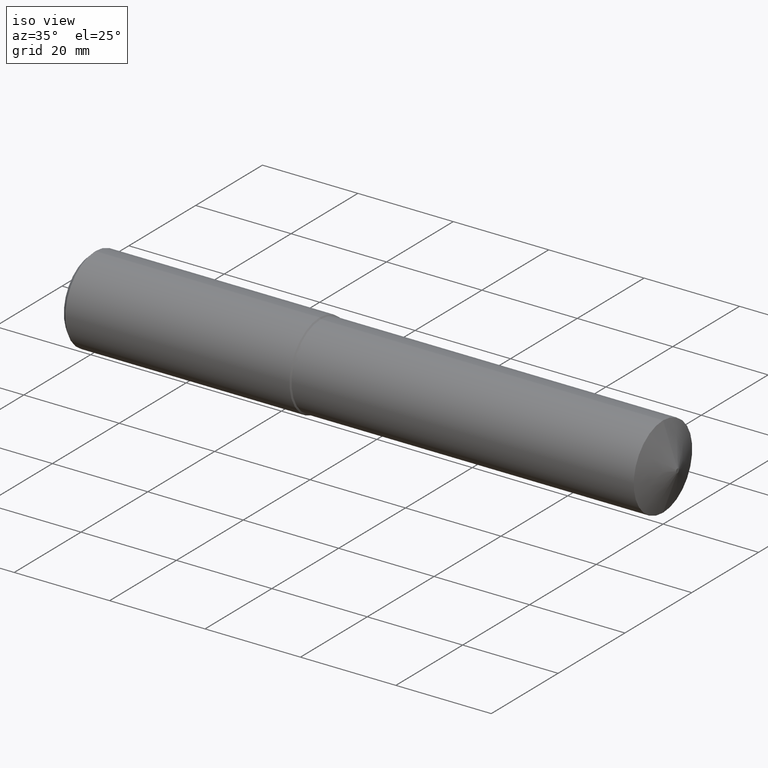
[diagram: clean part render]
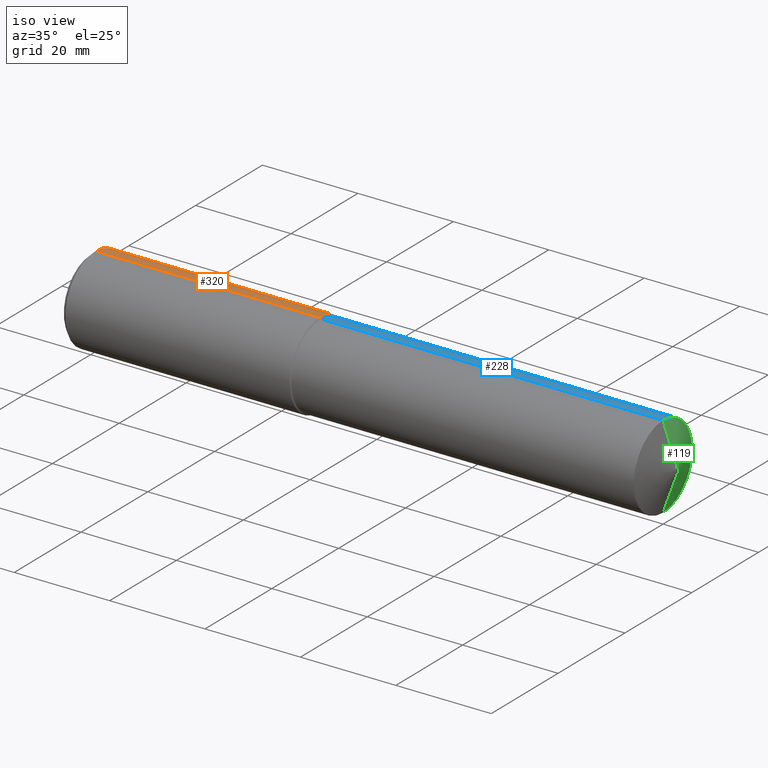
[diagram: same view with three faces highlighted in distinct colors, each labeled with its STEP entity id]
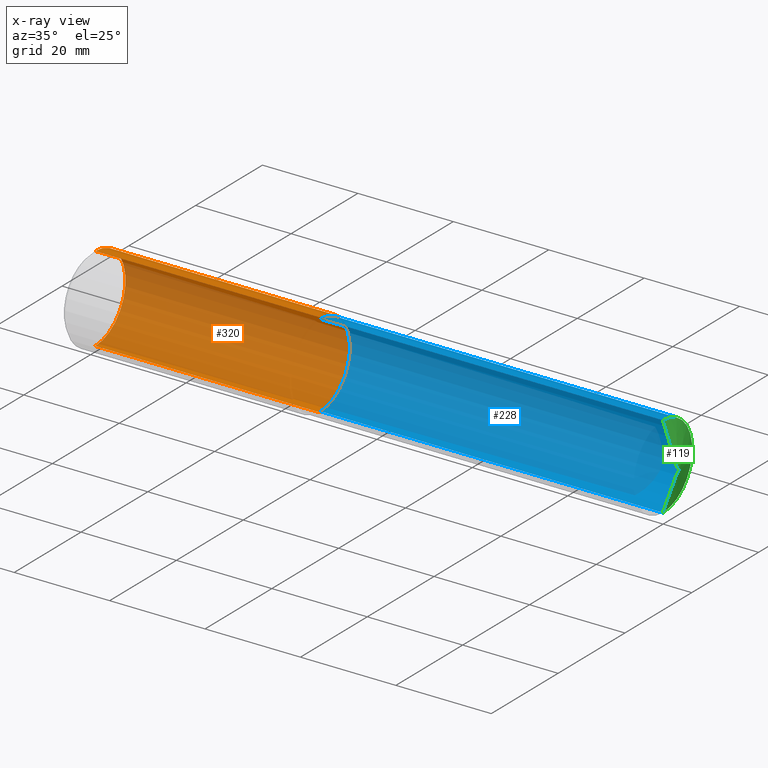
[diagram: x-ray of the same camera — body ghosted, the three highlighted faces saturated]
A machine part, iso view with three faces highlighted in distinct colors.
The next image is the same camera in x-ray (body ghosted, the three faces saturated) — at least one of them is partly hidden behind the body in this view.
Their STEP definitions:

[orange] entity #320 — the highlighted cylindrical surface (partial cylindrical patch) has radius 9 mm, axis along (1, -0, -0).
#1 = CARTESIAN_POINT ( 'NONE',  ( 1.889763779527559251, 0.000000000000000000, 0.000000000000000000 ) ) ;
#2 = CARTESIAN_POINT ( 'NONE',  ( 1.889763779527559251, 4.339299682018183145E-17, -0.3543307086614175261 ) ) ;
#13 = AXIS2_PLACEMENT_3D ( 'NONE', #28, #176, #197 ) ;
#28 = CARTESIAN_POINT ( 'NONE',  ( -0.03808593750000075634, 0.000000000000000000, 0.000000000000000000 ) ) ;
#36 = AXIS2_PLACEMENT_3D ( 'NONE', #190, #51, #192 ) ;
#37 = AXIS2_PLACEMENT_3D ( 'NONE', #1, #135, #111 ) ;
#51 = DIRECTION ( 'NONE',  ( 1.000000000000000000, -0.000000000000000000, -0.000000000000000000 ) ) ;
#60 = VECTOR ( 'NONE', #222, 39.37007874015748143 ) ;
#94 = VERTEX_POINT ( 'NONE', #2 ) ;
#98 = ORIENTED_EDGE ( 'NONE', *, *, #110, .F. ) ;
#110 = EDGE_CURVE ( 'NONE', #94, #126, #196, .T. ) ;
#111 = DIRECTION ( 'NONE',  ( 0.000000000000000000, 0.000000000000000000, -1.000000000000000000 ) ) ;
#115 = LINE ( 'NONE', #323, #202 ) ;
#126 = VERTEX_POINT ( 'NONE', #319 ) ;
#133 = EDGE_CURVE ( 'NONE', #210, #94, #317, .T. ) ;
#135 = DIRECTION ( 'NONE',  ( 1.000000000000000000, -0.000000000000000000, -0.000000000000000000 ) ) ;
#138 = CYLINDRICAL_SURFACE ( 'NONE', #13, 0.3543307086614173596 ) ;
#176 = DIRECTION ( 'NONE',  ( 1.000000000000000000, -0.000000000000000000, -0.000000000000000000 ) ) ;
#190 = CARTESIAN_POINT ( 'NONE',  ( 0.03937007874015747977, 0.000000000000000000, 0.000000000000000000 ) ) ;
#192 = DIRECTION ( 'NONE',  ( 0.000000000000000000, 0.000000000000000000, -1.000000000000000000 ) ) ;
#196 = CIRCLE ( 'NONE', #37, 0.3543307086614175261 ) ;
#197 = DIRECTION ( 'NONE',  ( 0.000000000000000000, 0.000000000000000000, -1.000000000000000000 ) ) ;
#202 = VECTOR ( 'NONE', #293, 39.37007874015748143 ) ;
#203 = FACE_OUTER_BOUND ( 'NONE', #236, .T. ) ;
#208 = ORIENTED_EDGE ( 'NONE', *, *, #363, .T. ) ;
#210 = VERTEX_POINT ( 'NONE', #219 ) ;
#219 = CARTESIAN_POINT ( 'NONE',  ( 0.03937007874015747977, 0.000000000000000000, -0.3543307086614172485 ) ) ;
#222 = DIRECTION ( 'NONE',  ( 1.000000000000000000, -0.000000000000000000, -0.000000000000000000 ) ) ;
#229 = ORIENTED_EDGE ( 'NONE', *, *, #242, .T. ) ;
#236 = EDGE_LOOP ( 'NONE', ( #229, #208, #98, #373 ) ) ;
#242 = EDGE_CURVE ( 'NONE', #210, #296, #267, .T. ) ;
#267 = CIRCLE ( 'NONE', #36, 0.3543307086614172485 ) ;
#286 = CARTESIAN_POINT ( 'NONE',  ( -0.03808593750000075634, 0.000000000000000000, -0.3543307086614173596 ) ) ;
#293 = DIRECTION ( 'NONE',  ( 1.000000000000000000, -0.000000000000000000, -0.000000000000000000 ) ) ;
#296 = VERTEX_POINT ( 'NONE', #361 ) ;
#317 = LINE ( 'NONE', #286, #60 ) ;
#319 = CARTESIAN_POINT ( 'NONE',  ( 1.889763779527559251, 0.000000000000000000, 0.3543307086614175261 ) ) ;
#320 = ADVANCED_FACE ( 'NONE', ( #203 ), #138, .T. ) ;
#323 = CARTESIAN_POINT ( 'NONE',  ( -0.03808593750000075634, 4.339299682018181296E-17, 0.3543307086614173596 ) ) ;
#361 = CARTESIAN_POINT ( 'NONE',  ( 0.03937007874015747977, 4.339299682018180063E-17, 0.3543307086614172485 ) ) ;
#363 = EDGE_CURVE ( 'NONE', #296, #126, #115, .T. ) ;
#373 = ORIENTED_EDGE ( 'NONE', *, *, #133, .F. ) ;

[blue] entity #228 — the highlighted cylindrical surface (partial cylindrical patch) has radius 8.7503 mm, axis along (1, -0, -0).
#8 = ORIENTED_EDGE ( 'NONE', *, *, #173, .T. ) ;
#12 = LINE ( 'NONE', #121, #78 ) ;
#14 = DIRECTION ( 'NONE',  ( 1.000000000000000000, -0.000000000000000000, -0.000000000000000000 ) ) ;
#25 = CARTESIAN_POINT ( 'NONE',  ( -0.03808593750000075634, 4.218908223062636632E-17, 0.3445000000000003615 ) ) ;
#27 = CARTESIAN_POINT ( 'NONE',  ( 4.723501418434322474, 4.218908223062640330E-17, -0.3445000000000006390 ) ) ;
#42 = AXIS2_PLACEMENT_3D ( 'NONE', #250, #84, #161 ) ;
#52 = CARTESIAN_POINT ( 'NONE',  ( -0.03808593750000075634, 0.000000000000000000, 0.000000000000000000 ) ) ;
#53 = AXIS2_PLACEMENT_3D ( 'NONE', #52, #220, #77 ) ;
#69 = EDGE_CURVE ( 'NONE', #116, #266, #191, .T. ) ;
#73 = EDGE_LOOP ( 'NONE', ( #8, #311, #369, #198 ) ) ;
#74 = EDGE_CURVE ( 'NONE', #367, #116, #12, .T. ) ;
#77 = DIRECTION ( 'NONE',  ( 0.000000000000000000, 0.000000000000000000, -1.000000000000000000 ) ) ;
#78 = VECTOR ( 'NONE', #14, 39.37007874015748143 ) ;
#81 = EDGE_CURVE ( 'NONE', #218, #266, #124, .T. ) ;
#84 = DIRECTION ( 'NONE',  ( 1.000000000000000000, -0.000000000000000000, -0.000000000000000000 ) ) ;
#104 = FACE_OUTER_BOUND ( 'NONE', #73, .T. ) ;
#116 = VERTEX_POINT ( 'NONE', #27 ) ;
#117 = CARTESIAN_POINT ( 'NONE',  ( 4.723501418434322474, 0.000000000000000000, 0.3445000000000006390 ) ) ;
#121 = CARTESIAN_POINT ( 'NONE',  ( -0.03808593750000075634, 0.000000000000000000, -0.3445000000000003615 ) ) ;
#124 = LINE ( 'NONE', #25, #345 ) ;
#150 = CARTESIAN_POINT ( 'NONE',  ( 4.723501418434322474, 0.000000000000000000, 0.000000000000000000 ) ) ;
#152 = CIRCLE ( 'NONE', #42, 0.3445000000000001950 ) ;
#153 = DIRECTION ( 'NONE',  ( 0.000000000000000000, 0.000000000000000000, -1.000000000000000000 ) ) ;
#161 = DIRECTION ( 'NONE',  ( 0.000000000000000000, 0.000000000000000000, -1.000000000000000000 ) ) ;
#173 = EDGE_CURVE ( 'NONE', #367, #218, #152, .T. ) ;
#191 = CIRCLE ( 'NONE', #240, 0.3445000000000005835 ) ;
#198 = ORIENTED_EDGE ( 'NONE', *, *, #74, .F. ) ;
#218 = VERTEX_POINT ( 'NONE', #377 ) ;
#220 = DIRECTION ( 'NONE',  ( 1.000000000000000000, -0.000000000000000000, -0.000000000000000000 ) ) ;
#228 = ADVANCED_FACE ( 'NONE', ( #104 ), #344, .T. ) ;
#240 = AXIS2_PLACEMENT_3D ( 'NONE', #150, #272, #153 ) ;
#250 = CARTESIAN_POINT ( 'NONE',  ( 1.899594488188976582, 0.000000000000000000, 0.000000000000000000 ) ) ;
#251 = DIRECTION ( 'NONE',  ( 1.000000000000000000, -0.000000000000000000, -0.000000000000000000 ) ) ;
#266 = VERTEX_POINT ( 'NONE', #117 ) ;
#272 = DIRECTION ( 'NONE',  ( 1.000000000000000000, -0.000000000000000000, -0.000000000000000000 ) ) ;
#288 = CARTESIAN_POINT ( 'NONE',  ( 1.899594488188976582, 0.000000000000000000, -0.3445000000000001950 ) ) ;
#311 = ORIENTED_EDGE ( 'NONE', *, *, #81, .T. ) ;
#344 = CYLINDRICAL_SURFACE ( 'NONE', #53, 0.3445000000000003615 ) ;
#345 = VECTOR ( 'NONE', #251, 39.37007874015748143 ) ;
#367 = VERTEX_POINT ( 'NONE', #288 ) ;
#369 = ORIENTED_EDGE ( 'NONE', *, *, #69, .F. ) ;
#377 = CARTESIAN_POINT ( 'NONE',  ( 1.899594488188976582, 4.218908223062635399E-17, 0.3445000000000001950 ) ) ;

[green] entity #119 — the highlighted conical surface has half-angle 70 deg.
#27 = CARTESIAN_POINT ( 'NONE',  ( 4.723501418434322474, 4.218908223062640330E-17, -0.3445000000000006390 ) ) ;
#30 = CONICAL_SURFACE ( 'NONE', #260, 0.01750000000000059841, 1.221730476396031717 ) ;
#34 = CARTESIAN_POINT ( 'NONE',  ( 4.842519685039370358, 0.000000000000000000, 0.000000000000000000 ) ) ;
#35 = LINE ( 'NONE', #205, #107 ) ;
#50 = CARTESIAN_POINT ( 'NONE',  ( 4.842519685039370358, 0.000000000000000000, 0.000000000000000000 ) ) ;
#61 = LINE ( 'NONE', #146, #318 ) ;
#63 = DIRECTION ( 'NONE',  ( -0.3420201433256677692, 0.000000000000000000, 0.9396926207859086499 ) ) ;
#69 = EDGE_CURVE ( 'NONE', #116, #266, #191, .T. ) ;
#89 = ORIENTED_EDGE ( 'NONE', *, *, #358, .T. ) ;
#107 = VECTOR ( 'NONE', #63, 39.37007874015748143 ) ;
#116 = VERTEX_POINT ( 'NONE', #27 ) ;
#117 = CARTESIAN_POINT ( 'NONE',  ( 4.723501418434322474, 0.000000000000000000, 0.3445000000000006390 ) ) ;
#119 = ADVANCED_FACE ( 'NONE', ( #348 ), #30, .T. ) ;
#134 = DIRECTION ( 'NONE',  ( -1.000000000000000000, 0.000000000000000000, 0.000000000000000000 ) ) ;
#139 = AXIS2_PLACEMENT_3D ( 'NONE', #34, #355, #324 ) ;
#146 = CARTESIAN_POINT ( 'NONE',  ( 4.842519685039370358, 2.143131898507941560E-18, -0.01750000000000059841 ) ) ;
#150 = CARTESIAN_POINT ( 'NONE',  ( 4.723501418434322474, 0.000000000000000000, 0.000000000000000000 ) ) ;
#153 = DIRECTION ( 'NONE',  ( 0.000000000000000000, 0.000000000000000000, -1.000000000000000000 ) ) ;
#166 = CIRCLE ( 'NONE', #139, 0.01750000000000059841 ) ;
#171 = CARTESIAN_POINT ( 'NONE',  ( 4.842519685039370358, 2.216610706456716106E-17, -0.01750000000000059841 ) ) ;
#175 = ORIENTED_EDGE ( 'NONE', *, *, #69, .T. ) ;
#191 = CIRCLE ( 'NONE', #240, 0.3445000000000005835 ) ;
#205 = CARTESIAN_POINT ( 'NONE',  ( 4.842519685039370358, 0.000000000000000000, 0.01750000000000059841 ) ) ;
#206 = ORIENTED_EDGE ( 'NONE', *, *, #332, .F. ) ;
#221 = DIRECTION ( 'NONE',  ( 0.000000000000000000, 0.000000000000000000, 1.000000000000000000 ) ) ;
#231 = ORIENTED_EDGE ( 'NONE', *, *, #325, .F. ) ;
#240 = AXIS2_PLACEMENT_3D ( 'NONE', #150, #272, #153 ) ;
#258 = CARTESIAN_POINT ( 'NONE',  ( 4.842519685039370358, 0.000000000000000000, 0.01750000000000059841 ) ) ;
#260 = AXIS2_PLACEMENT_3D ( 'NONE', #50, #134, #221 ) ;
#262 = DIRECTION ( 'NONE',  ( -0.3420201433256677692, 1.150791560227850763E-16, -0.9396926207859086499 ) ) ;
#266 = VERTEX_POINT ( 'NONE', #117 ) ;
#272 = DIRECTION ( 'NONE',  ( 1.000000000000000000, -0.000000000000000000, -0.000000000000000000 ) ) ;
#318 = VECTOR ( 'NONE', #262, 39.37007874015748143 ) ;
#324 = DIRECTION ( 'NONE',  ( 0.000000000000000000, 0.000000000000000000, -1.000000000000000000 ) ) ;
#325 = EDGE_CURVE ( 'NONE', #352, #266, #35, .T. ) ;
#332 = EDGE_CURVE ( 'NONE', #362, #352, #166, .T. ) ;
#333 = EDGE_LOOP ( 'NONE', ( #206, #89, #175, #231 ) ) ;
#348 = FACE_OUTER_BOUND ( 'NONE', #333, .T. ) ;
#352 = VERTEX_POINT ( 'NONE', #258 ) ;
#355 = DIRECTION ( 'NONE',  ( 1.000000000000000000, -0.000000000000000000, -0.000000000000000000 ) ) ;
#358 = EDGE_CURVE ( 'NONE', #362, #116, #61, .T. ) ;
#362 = VERTEX_POINT ( 'NONE', #171 ) ;